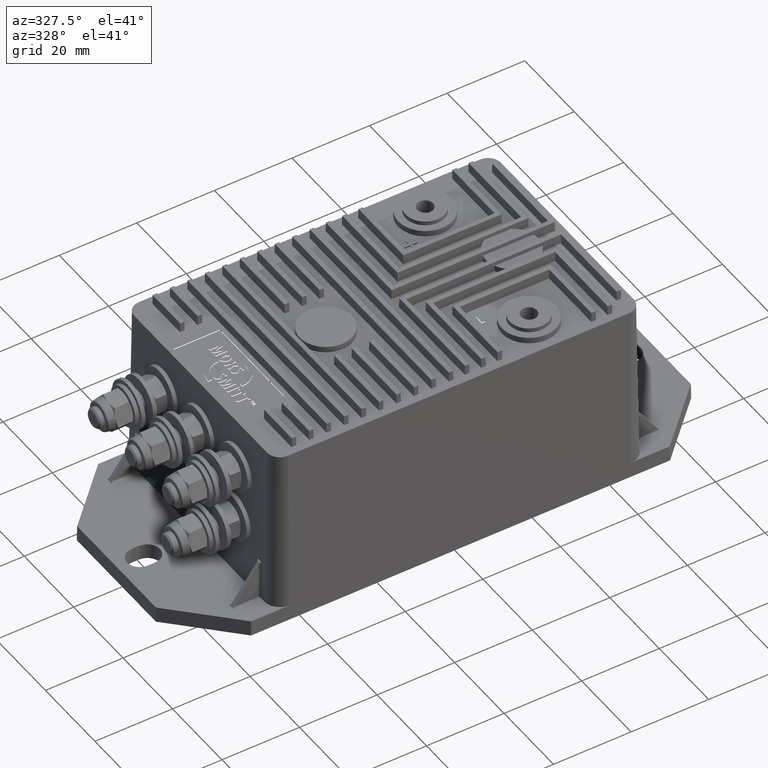
[diagram: clean part render]
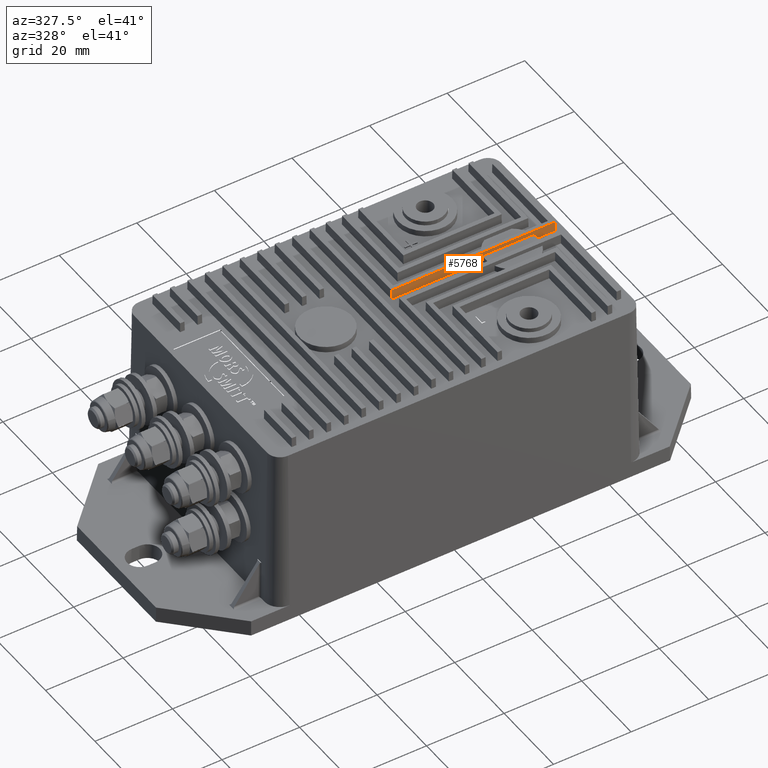
[diagram: same view with one face highlighted and labeled with its STEP entity id]
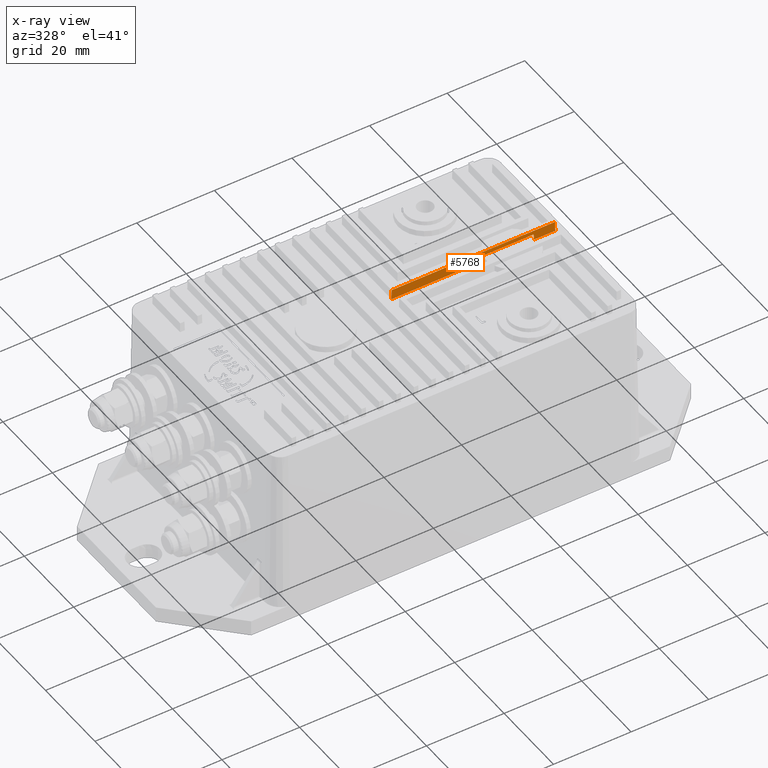
[diagram: x-ray of the same camera — body ghosted, the highlighted face saturated]
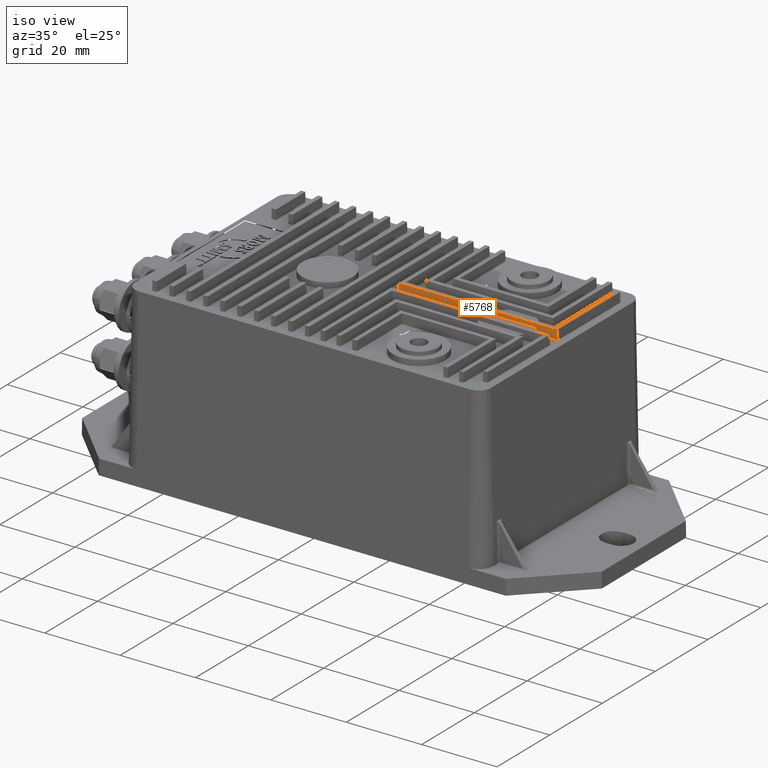
[diagram: same view with one face highlighted and labeled with its STEP entity id]
A machine part, auxiliary view. The second image highlights one B-rep face of the part: STEP entity #5768.
The next image is the same camera in x-ray: the body ghosted, the highlighted face saturated — about 0% of this face is hidden behind the body in this view.
A second angle (iso view) of the same face is appended — the face is thin or edge-on in the first view.
In plain terms, the highlighted planar face has unit normal (-0, 0.9998, -0.0175).
Its self-contained STEP definition (entity closure, byte-faithful):
#5697=CARTESIAN_POINT('',(43.579976910027646,1.500000000000226,46.5));
#5698=DIRECTION('',(-2.994282E-015,0.999847695156391,-0.017452406437284));
#5699=DIRECTION('',(-1.0,0.0,0.0));
#5700=AXIS2_PLACEMENT_3D('',#5697,#5698,#5699);
#5701=PLANE('',#5700);
#5702=CARTESIAN_POINT('',(26.451680586362141,1.526182597392501,48.000000000000007));
#5703=VERTEX_POINT('',#5702);
#5704=CARTESIAN_POINT('',(26.418776709455905,1.500000000000138,46.5));
#5705=VERTEX_POINT('',#5704);
#5706=CARTESIAN_POINT('',(26.451680586362137,1.526182597392501,48.000000000000007));
#5707=CARTESIAN_POINT('',(26.435228648375869,1.513124107101616,47.251879592279536));
#5708=CARTESIAN_POINT('',(26.418776709455916,1.500000000000175,46.5));
#5709=B_SPLINE_CURVE_WITH_KNOTS('',2,(#5706,#5707,#5708),.UNSPECIFIED.,.F.,.U.,(3,3),(0.0,0.150058928265558),.UNSPECIFIED.);
#5710=EDGE_CURVE('',#5703,#5705,#5709,.T.);
#5711=ORIENTED_EDGE('',*,*,#5710,.F.);
#5712=CARTESIAN_POINT('',(39.548319413637863,1.526182597392541,48.000000000000007));
#5713=VERTEX_POINT('',#5712);
#5714=CARTESIAN_POINT('',(39.548319413637863,1.52618259739254,48.000000000000007));
#5715=DIRECTION('',(-1.0,0.0,0.0));
#5716=VECTOR('',#5715,13.096638827275726);
#5717=LINE('',#5714,#5716);
#5718=EDGE_CURVE('',#5713,#5703,#5717,.T.);
#5719=ORIENTED_EDGE('',*,*,#5718,.F.);
#5720=CARTESIAN_POINT('',(39.581223290544088,1.500000000000206,46.5));
#5721=VERTEX_POINT('',#5720);
#5722=CARTESIAN_POINT('',(39.581223290544088,1.500000000000214,46.5));
#5723=CARTESIAN_POINT('',(39.564771351624508,1.51312410710136,47.251879592262618));
#5724=CARTESIAN_POINT('',(39.54831941363787,1.52618259739254,48.000000000000007));
#5725=B_SPLINE_CURVE_WITH_KNOTS('',2,(#5722,#5723,#5724),.UNSPECIFIED.,.F.,.U.,(3,3),(0.0,0.150058928265558),.UNSPECIFIED.);
#5726=EDGE_CURVE('',#5721,#5713,#5725,.T.);
#5727=ORIENTED_EDGE('',*,*,#5726,.F.);
#5728=CARTESIAN_POINT('',(45.101797402871256,1.500000000000231,46.5));
#5729=VERTEX_POINT('',#5728);
#5730=CARTESIAN_POINT('',(45.101797402871256,1.500000000000231,46.5));
#5731=DIRECTION('',(-1.0,0.0,0.0));
#5732=VECTOR('',#5731,5.520574112327168);
#5733=LINE('',#5730,#5732);
#5734=EDGE_CURVE('',#5729,#5721,#5733,.T.);
#5735=ORIENTED_EDGE('',*,*,#5734,.F.);
#5736=CARTESIAN_POINT('',(45.058159740550714,1.543637662320774,48.999999999999986));
#5737=VERTEX_POINT('',#5736);
#5738=CARTESIAN_POINT('',(45.101797402871249,1.500000000000231,46.5));
#5739=DIRECTION('',(-0.017449749160682,0.017449749160683,0.999695459881887));
#5740=VECTOR('',#5739,2.500761582227609);
#5741=LINE('',#5738,#5740);
#5742=EDGE_CURVE('',#5729,#5737,#5741,.T.);
#5743=ORIENTED_EDGE('',*,*,#5742,.T.);
#5744=CARTESIAN_POINT('',(2.941840259449223,1.543637662320559,48.999999999999986));
#5745=VERTEX_POINT('',#5744);
#5746=CARTESIAN_POINT('',(2.941840259449222,1.543637662320645,48.999999999999986));
#5747=DIRECTION('',(1.0,0.0,0.0));
#5748=VECTOR('',#5747,42.116319481101492);
#5749=LINE('',#5746,#5748);
#5750=EDGE_CURVE('',#5745,#5737,#5749,.T.);
#5751=ORIENTED_EDGE('',*,*,#5750,.F.);
#5752=CARTESIAN_POINT('',(2.898202597128679,1.500000000000018,46.5));
#5753=VERTEX_POINT('',#5752);
#5754=CARTESIAN_POINT('',(2.89820259712868,1.500000000000016,46.5));
#5755=DIRECTION('',(0.017449749160683,0.017449749160683,0.999695459881887));
#5756=VECTOR('',#5755,2.500761582227609);
#5757=LINE('',#5754,#5756);
#5758=EDGE_CURVE('',#5753,#5745,#5757,.T.);
#5759=ORIENTED_EDGE('',*,*,#5758,.F.);
#5760=CARTESIAN_POINT('',(26.418776709455909,1.500000000000175,46.5));
#5761=DIRECTION('',(-1.0,0.0,0.0));
#5762=VECTOR('',#5761,23.520574112327228);
#5763=LINE('',#5760,#5762);
#5764=EDGE_CURVE('',#5705,#5753,#5763,.T.);
#5765=ORIENTED_EDGE('',*,*,#5764,.F.);
#5766=EDGE_LOOP('',(#5711,#5719,#5727,#5735,#5743,#5751,#5759,#5765));
#5767=FACE_OUTER_BOUND('',#5766,.T.);
#5768=ADVANCED_FACE('',(#5767),#5701,.F.);